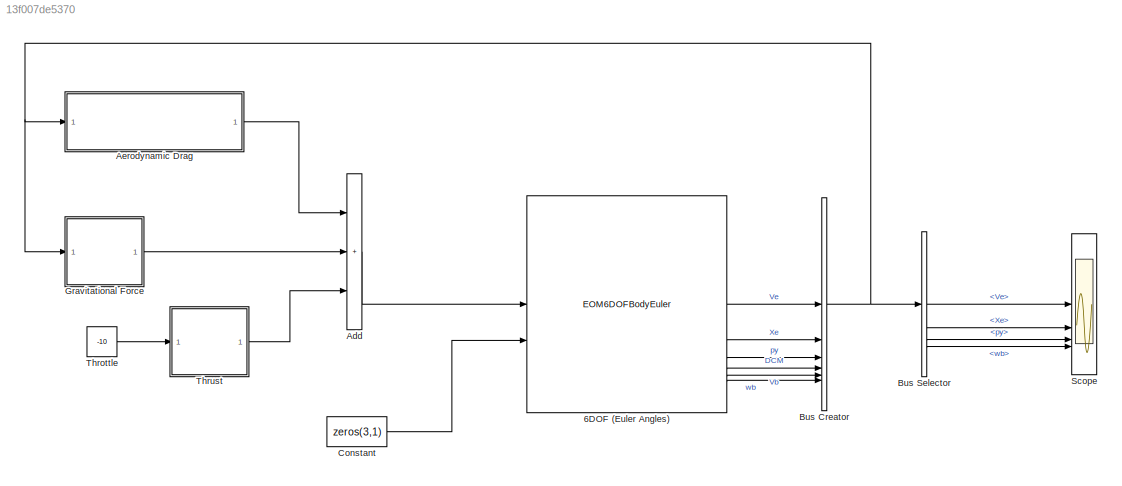
MODEL slx_13f007de5370
KIND model
CONFIG AbsTol = auto
CONFIG EnableMultiTasking = off
CONFIG FixedStep = auto
CONFIG MaxStep = auto
CONFIG MinStep = auto
CONFIG RelTol = 1e-3
CONFIG SampleTimeConstraint = Unconstrained
CONFIG SolverName = VariableStepAuto
CONFIG StartTime = 0.0
CONFIG StopTime = 10.0
BLOCK [EOM6DOFBodyEuler] 6DOF (Euler Angles)
BLOCK [Sum] Add
  IconShape = rectangular
  Inputs = +++
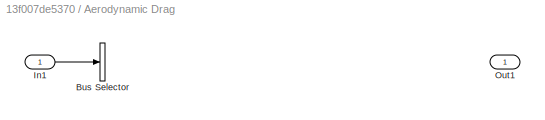
BLOCK [SubSystem] Aerodynamic Drag
BLOCK [BusSelector] Aerodynamic Drag/Bus Selector
  OutputSignals = Vb
BLOCK [Inport] Aerodynamic Drag/In1
BLOCK [Outport] Aerodynamic Drag/Out1
BLOCK [BusCreator] Bus Creator
  DisplayOption = bar
  InheritFromInputs = on
  Inputs = 6
BLOCK [BusSelector] Bus Selector
  OutputSignals = Ve,Xe,py,wb
BLOCK [Constant] Constant
  Value = zeros(3,1)
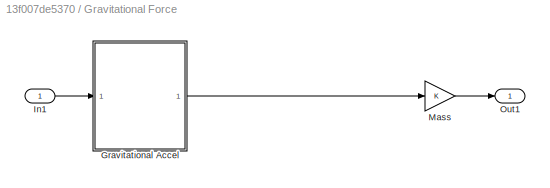
BLOCK [SubSystem] Gravitational Force
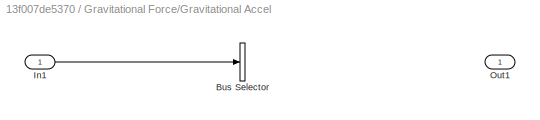
BLOCK [SubSystem] Gravitational Force/Gravitational Accel
BLOCK [BusSelector] Gravitational Force/Gravitational Accel/Bus Selector
  OutputSignals = DCM
BLOCK [Inport] Gravitational Force/Gravitational Accel/In1
BLOCK [Outport] Gravitational Force/Gravitational Accel/Out1
BLOCK [Inport] Gravitational Force/In1
BLOCK [Gain] Gravitational Force/Mass
BLOCK [Outport] Gravitational Force/Out1
BLOCK [Scope] Scope
  Floating = off
  GraphicalSettings = {"GraphicalSettings":{"LegacySettings":true,"Style":{"Style":{"PlotType":"Auto"}}}}
  NumInputPorts = 4
  WasSavedAsWebScope = on
BLOCK [Constant] Throttle
  Value = -10
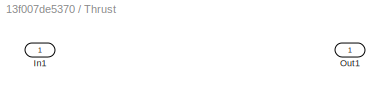
BLOCK [SubSystem] Thrust
BLOCK [Inport] Thrust/In1
BLOCK [Outport] Thrust/Out1
LINE 6DOF (Euler Angles):1 -> Bus Creator:1
LINE 6DOF (Euler Angles):2 -> Bus Creator:2
LINE 6DOF (Euler Angles):3 -> Bus Creator:3
LINE 6DOF (Euler Angles):4 -> Bus Creator:4
LINE 6DOF (Euler Angles):5 -> Bus Creator:5
LINE 6DOF (Euler Angles):6 -> Bus Creator:6
LINE Add:1 -> 6DOF (Euler Angles):1
LINE Aerodynamic Drag/In1:1 -> Aerodynamic Drag/Bus Selector:1
LINE Aerodynamic Drag:1 -> Add:1
NET Bus Creator:1 -> Aerodynamic Drag:1, Bus Selector:1, Gravitational Force:1
LINE Bus Selector:1 -> Scope:1
LINE Bus Selector:2 -> Scope:2
LINE Bus Selector:3 -> Scope:3
LINE Bus Selector:4 -> Scope:4
LINE Constant:1 -> 6DOF (Euler Angles):2
LINE Gravitational Force/Gravitational Accel/In1:1 -> Gravitational Force/Gravitational Accel/Bus Selector:1
LINE Gravitational Force/Gravitational Accel:1 -> Gravitational Force/Mass:1
LINE Gravitational Force/In1:1 -> Gravitational Force/Gravitational Accel:1
LINE Gravitational Force/Mass:1 -> Gravitational Force/Out1:1
LINE Gravitational Force:1 -> Add:2
LINE Throttle:1 -> Thrust:1
LINE Thrust:1 -> Add:3
note: NET lines group one-source signal fan-out (src -> all destinations, sorted); 1:1 wires keep LINE
